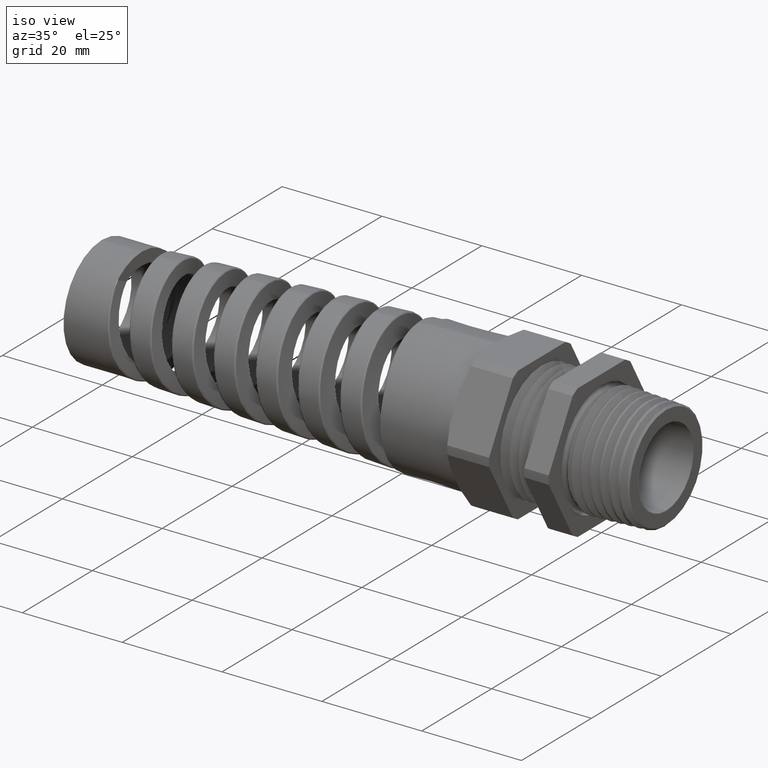
[diagram: clean part render]
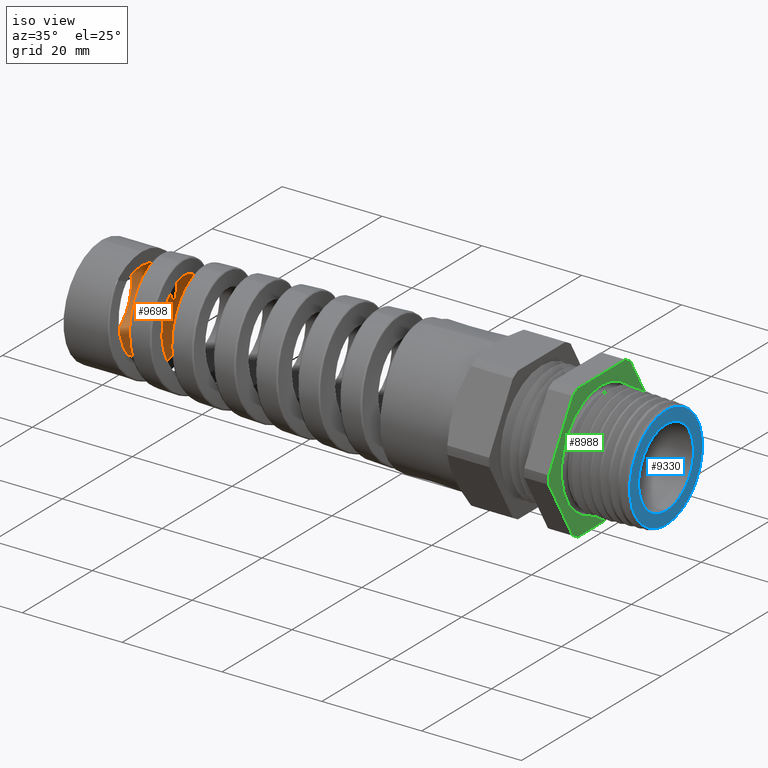
[diagram: same view with three faces highlighted in distinct colors, each labeled with its STEP entity id]
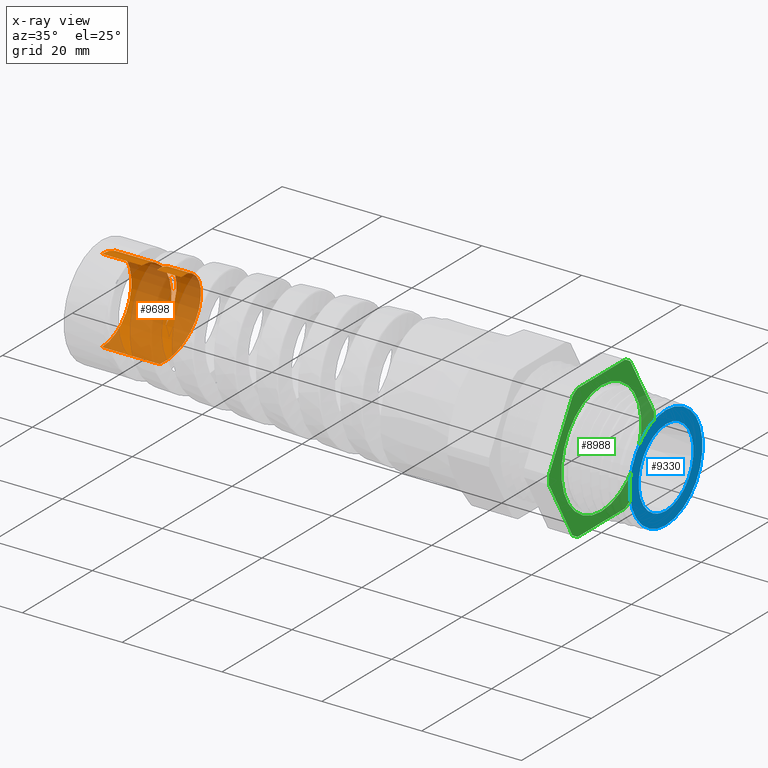
[diagram: x-ray of the same camera — body ghosted, the three highlighted faces saturated]
A machine part, iso view with three faces highlighted in distinct colors.
The next image is the same camera in x-ray (body ghosted, the three faces saturated) — at least one of them is partly hidden behind the body in this view.
Their STEP definitions:

[orange] entity #9698 — the highlighted cylindrical surface (partial cylindrical patch) has radius 8.4489 mm, axis along (1, 0, 0).
#2086 = CARTESIAN_POINT ( 'NONE',  ( -3.332419637064384600, 0.1172968321958106400, 0.3114596044755967300 ) ) ;
#2087 = CARTESIAN_POINT ( 'NONE',  ( -3.330619972169376100, 0.1069085794521860800, 0.3151760758886861800 ) ) ;
#2088 = CARTESIAN_POINT ( 'NONE',  ( -3.327057346710889700, 0.08603399710430580100, 0.3215020287888266700 ) ) ;
#2089 = CARTESIAN_POINT ( 'NONE',  ( -3.325285817009993900, 0.07550043780978385500, 0.3241350584902688000 ) ) ;
#2090 = CARTESIAN_POINT ( 'NONE',  ( -3.319975315656644300, 0.04362052677056483400, 0.3304743159976104600 ) ) ;
#2091 = CARTESIAN_POINT ( 'NONE',  ( -3.316435376215805400, 0.02195650486290792400, 0.3326356290387463300 ) ) ;
#2092 = CARTESIAN_POINT ( 'NONE',  ( -3.312849431311558800, -8.894512901246733600E-015, 0.3326356290387458300 ) ) ;
#2094 = B_SPLINE_CURVE_WITH_KNOTS ( 'NONE', 3,
 ( #2092, #2091, #2090, #2089, #2088, #2087, #2086, #2160, #2159, #2158, #2157, #2156, #2155, #2154, #2153, #2152, #2151, #2150, #2149, #2148, #2147, #2146, #2145, #2144, #2143, #2142, #2141, #2140, #2139, #2138, #2137, #2136, #2135, #2134, #2133, #2132, #2131, #2130, #2129, #2128, #2127, #2126, #2125, #2124 ),
 .UNSPECIFIED., .F., .F.,
 ( 4, 2, 2, 2, 2, 2, 2, 2, 2, 2, 2, 2, 2, 2, 2, 2, 2, 2, 2, 2, 2, 4 ),
 ( 0.3436682690029260700, 0.3453410504182771700, 0.3461774411259526700, 0.3470138318336282200, 0.3486866132489793200, 0.3503593946643304100, 0.3520321760796814600, 0.3528685667873570100, 0.3537049574950325600, 0.3553777389103836600, 0.3570505203257347000, 0.3578869110334102500, 0.3587233017410858000, 0.3603960831564369000, 0.3620688645717880000, 0.3637416459871391000, 0.3645780366948145900, 0.3654144274024901400, 0.3670872088178412400, 0.3687599902331923400, 0.3695963809408678900, 0.3704327716485434400 ),
 .UNSPECIFIED. ) ;
#2124 = CARTESIAN_POINT ( 'NONE',  ( -3.483565039913822500, 1.014301011947619900E-012, -0.3326356290387454400 ) ) ;
#2125 = CARTESIAN_POINT ( 'NONE',  ( -3.481787368350132800, 0.01089960243976619700, -0.3326356290387124100 ) ) ;
#2126 = CARTESIAN_POINT ( 'NONE',  ( -3.479990619161785300, 0.02191578194913980700, -0.3320926136535717300 ) ) ;
#2127 = CARTESIAN_POINT ( 'NONE',  ( -3.476425454781748100, 0.04365830670852512100, -0.3299390213312865000 ) ) ;
#2128 = CARTESIAN_POINT ( 'NONE',  ( -3.474653286242862700, 0.05440786973283673300, -0.3283347656878755100 ) ) ;
#2129 = CARTESIAN_POINT ( 'NONE',  ( -3.469341366220634300, 0.08629578726507872200, -0.3219773137582902500 ) ) ;
#2130 = CARTESIAN_POINT ( 'NONE',  ( -3.465805863022106700, 0.1070767329297673400, -0.3156940425236234900 ) ) ;
#2131 = CARTESIAN_POINT ( 'NONE',  ( -3.458621244356927100, 0.1476272929445691900, -0.2988885036224687700 ) ) ;
#2132 = CARTESIAN_POINT ( 'NONE',  ( -3.455076508318695200, 0.1668289887649651900, -0.2885898465524131000 ) ) ;
#2133 = CARTESIAN_POINT ( 'NONE',  ( -3.449771346605958300, 0.1938520334492141200, -0.2705277031349612700 ) ) ;
#2134 = CARTESIAN_POINT ( 'NONE',  ( -3.448002398847984200, 0.2025738202217209600, -0.2640628718960000800 ) ) ;
#2135 = CARTESIAN_POINT ( 'NONE',  ( -3.444445490478806400, 0.2194322198803097000, -0.2502296022288026400 ) ) ;
#2136 = CARTESIAN_POINT ( 'NONE',  ( -3.442648519813332100, 0.2276056406652872100, -0.2428196371982587200 ) ) ;
#2137 = CARTESIAN_POINT ( 'NONE',  ( -3.437304680492763200, 0.2507587713102731300, -0.2196439595799437300 ) ) ;
#2138 = CARTESIAN_POINT ( 'NONE',  ( -3.433783040290111300, 0.2644979293758868400, -0.2028763098247286000 ) ) ;
#2139 = CARTESIAN_POINT ( 'NONE',  ( -3.426682782364302200, 0.2886276930025962200, -0.1667693214120329600 ) ) ;
#2140 = CARTESIAN_POINT ( 'NONE',  ( -3.423071605734307400, 0.2990683630830463000, -0.1472299162739065800 ) ) ;
#2141 = CARTESIAN_POINT ( 'NONE',  ( -3.415962407389001600, 0.3156791909658361300, -0.1070755921503568100 ) ) ;
#2142 = CARTESIAN_POINT ( 'NONE',  ( -3.412442093894248800, 0.3219755742450180500, -0.08633726780221052900 ) ) ;
#2143 = CARTESIAN_POINT ( 'NONE',  ( -3.407103562814599600, 0.3283643175555855900, -0.05424315432610808000 ) ) ;
#2144 = CARTESIAN_POINT ( 'NONE',  ( -3.405306274526149300, 0.3299821854012857100, -0.04332852962705729300 ) ) ;
#2145 = CARTESIAN_POINT ( 'NONE',  ( -3.401745763295542300, 0.3321128510374162200, -0.02160227621455994600 ) ) ;
#2146 = CARTESIAN_POINT ( 'NONE',  ( -3.399975942972509400, 0.3326383819035133600, -0.01075179983920572000 ) ) ;
#2147 = CARTESIAN_POINT ( 'NONE',  ( -3.394670375380581400, 0.3326300908567569900, 0.02175809732717535300 ) ) ;
#2148 = CARTESIAN_POINT ( 'NONE',  ( -3.391138487564122600, 0.3305264560387649600, 0.04337638159647991300 ) ) ;
#2149 = CARTESIAN_POINT ( 'NONE',  ( -3.383948641168030800, 0.3219489938800366200, 0.08647597331965259400 ) ) ;
#2150 = CARTESIAN_POINT ( 'NONE',  ( -3.380405549248623100, 0.3156122105963011200, 0.1072615979921578400 ) ) ;
#2151 = CARTESIAN_POINT ( 'NONE',  ( -3.375094547811982700, 0.3031732073658950900, 0.1372948727568012200 ) ) ;
#2152 = CARTESIAN_POINT ( 'NONE',  ( -3.373323512750762400, 0.2985340101796914400, 0.1471155450342700500 ) ) ;
#2153 = CARTESIAN_POINT ( 'NONE',  ( -3.369761914453734500, 0.2882501464236512100, 0.1663652364872003100 ) ) ;
#2154 = CARTESIAN_POINT ( 'NONE',  ( -3.367964225090906100, 0.2825767353090208900, 0.1758291642440885400 ) ) ;
#2155 = CARTESIAN_POINT ( 'NONE',  ( -3.362625654925846000, 0.2643821574943625600, 0.2030387032743671300 ) ) ;
#2156 = CARTESIAN_POINT ( 'NONE',  ( -3.359108080068348400, 0.2506238158106998100, 0.2197865513007754000 ) ) ;
#2157 = CARTESIAN_POINT ( 'NONE',  ( -3.352012401241920800, 0.2199078594471936500, 0.2505173817074522500 ) ) ;
#2158 = CARTESIAN_POINT ( 'NONE',  ( -3.348405517729536200, 0.2027806688916460300, 0.2645714718353905900 ) ) ;
#2159 = CARTESIAN_POINT ( 'NONE',  ( -3.341296669024683000, 0.1666604879460637500, 0.2886907430848246200 ) ) ;
#2160 = CARTESIAN_POINT ( 'NONE',  ( -3.337768482185635500, 0.1475499223349068500, 0.2989183225465219500 ) ) ;
#2851 = CARTESIAN_POINT ( 'NONE',  ( -3.624800000000000000, 0.2686459921528348600, -0.1961524728526759000 ) ) ;
#3379 = CARTESIAN_POINT ( 'NONE',  ( -3.510878311447871000, 0.03055612501603862200, 0.3315849165378102500 ) ) ;
#3380 = CARTESIAN_POINT ( 'NONE',  ( -3.515862798531213000, 0.06097381763225370700, 0.3273597825248713000 ) ) ;
#3381 = CARTESIAN_POINT ( 'NONE',  ( -3.518329943372475300, 0.07588301324879503900, 0.3242204771706611600 ) ) ;
#3382 = CARTESIAN_POINT ( 'NONE',  ( -3.523261832488077300, 0.1051139865573061200, 0.3159560085621390700 ) ) ;
#3383 = CARTESIAN_POINT ( 'NONE',  ( -3.525726436519823100, 0.1194357633140339700, 0.3108307615391873200 ) ) ;
#3384 = CARTESIAN_POINT ( 'NONE',  ( -3.530696132369825200, 0.1474717725117943300, 0.2985510679760943800 ) ) ;
#3385 = CARTESIAN_POINT ( 'NONE',  ( -3.533200741779432400, 0.1611760380502160500, 0.2913774133962536200 ) ) ;
#3386 = CARTESIAN_POINT ( 'NONE',  ( -3.538145754456585700, 0.1871330887446955300, 0.2754264318759656600 ) ) ;
#3387 = CARTESIAN_POINT ( 'NONE',  ( -3.540605489758901700, 0.1994981298100592900, 0.2666052924812656300 ) ) ;
#3388 = CARTESIAN_POINT ( 'NONE',  ( -3.545545561637612100, 0.2230000938494625100, 0.2472829228229546900 ) ) ;
#3389 = CARTESIAN_POINT ( 'NONE',  ( -3.548041395585944000, 0.2342013191500274300, 0.2367100858774413000 ) ) ;
#3390 = CARTESIAN_POINT ( 'NONE',  ( -3.555514953843075300, 0.2653986084089941500, 0.2028592717315088900 ) ) ;
#3391 = CARTESIAN_POINT ( 'NONE',  ( -3.560398040512245700, 0.2827278827962916300, 0.1779024037735232900 ) ) ;
#3392 = CARTESIAN_POINT ( 'NONE',  ( -3.567857102397325800, 0.3035251125336226300, 0.1369431728333724600 ) ) ;
#3393 = CARTESIAN_POINT ( 'NONE',  ( -3.570361546834223400, 0.3095495936322056300, 0.1227086170024681100 ) ) ;
#3394 = CARTESIAN_POINT ( 'NONE',  ( -3.575305612240963400, 0.3194664995187270800, 0.09391225313968944200 ) ) ;
#3395 = CARTESIAN_POINT ( 'NONE',  ( -3.577764822917159000, 0.3234162217421433500, 0.07924619645759785300 ) ) ;
#3396 = CARTESIAN_POINT ( 'NONE',  ( -3.582704780823447800, 0.3293006857953549900, 0.04938694638938766200 ) ) ;
#3397 = CARTESIAN_POINT ( 'NONE',  ( -3.585202544327633900, 0.3312395128146035100, 0.03408822482171274700 ) ) ;
#3398 = CARTESIAN_POINT ( 'NONE',  ( -3.590182844149499600, 0.3329708696028344000, 0.003467263630560508700 ) ) ;
#3399 = CARTESIAN_POINT ( 'NONE',  ( -3.592649507466562300, 0.3327745254082268300, -0.01175736722559658800 ) ) ;
#3400 = CARTESIAN_POINT ( 'NONE',  ( -3.597580079502187300, 0.3303185767821627000, -0.04203282380895512200 ) ) ;
#3406 = CARTESIAN_POINT ( 'NONE',  ( -3.600044259276092600, 0.3280589358048664500, -0.05708360207319071500 ) ) ;
#3407 = CARTESIAN_POINT ( 'NONE',  ( -3.605018382305361400, 0.3214224666810022200, -0.08699885573829009600 ) ) ;
#3408 = CARTESIAN_POINT ( 'NONE',  ( -3.607519652665494900, 0.3170383022276247500, -0.1018044314955911800 ) ) ;
#3409 = CARTESIAN_POINT ( 'NONE',  ( -3.614923345370609100, 0.3011323164038692800, -0.1445325302667013800 ) ) ;
#3410 = CARTESIAN_POINT ( 'NONE',  ( -3.619798076906621400, 0.2868155853971033900, -0.1712678087282256700 ) ) ;
#3411 = CARTESIAN_POINT ( 'NONE',  ( -3.624800000000000000, 0.2686459921528348600, -0.1961524728526759000 ) ) ;
#3413 = B_SPLINE_CURVE_WITH_KNOTS ( 'NONE', 3,
 ( #3411, #3410, #3409, #3408, #3407, #3406, #3400, #3399, #3398, #3397, #3396, #3395, #3394, #3393, #3392, #3391, #3390, #3389, #3388, #3387, #3386, #3385, #3384, #3383, #3382, #3381, #3380, #3379, #3449, #3448 ),
 .UNSPECIFIED., .F., .F.,
 ( 4, 2, 2, 2, 2, 2, 2, 2, 2, 2, 2, 2, 2, 2, 4 ),
 ( 1.427883970672907300E-016, 0.002337888064892977500, 0.003506832097339390500, 0.004675776129785803200, 0.005844720162232215800, 0.007013664194678627600, 0.008182608227125038500, 0.009351552259571452000, 0.01168944032446427500, 0.01285838435691069100, 0.01402732838935710400, 0.01519627242180352300, 0.01636521645424994200, 0.01753416048669636000, 0.01870310451914277600 ),
 .UNSPECIFIED. ) ;
#3415 = CIRCLE ( 'NONE', #3481, 0.3326356290387437700 ) ;
#3448 = CARTESIAN_POINT ( 'NONE',  ( -3.505916521317922200, 5.897067389167196200E-013, 0.3326356290387457700 ) ) ;
#3449 = CARTESIAN_POINT ( 'NONE',  ( -3.508388289969136800, 0.01520852404908703100, 0.3326356290387173500 ) ) ;
#3451 = CYLINDRICAL_SURFACE ( 'NONE', #3517, 0.3326356290387456100 ) ;
#3452 = FACE_OUTER_BOUND ( 'NONE', #9699, .T. ) ;
#3478 = DIRECTION ( 'NONE',  ( 0.0000000000000000000, 0.0000000000000000000, 1.000000000000000000 ) ) ;
#3479 = DIRECTION ( 'NONE',  ( -1.000000000000000000, 0.0000000000000000000, 0.0000000000000000000 ) ) ;
#3480 = CARTESIAN_POINT ( 'NONE',  ( -3.624800000000000000, 0.0000000000000000000, 0.0000000000000000000 ) ) ;
#3481 = AXIS2_PLACEMENT_3D ( 'NONE', #3480, #3479, #3478 ) ;
#3489 = DIRECTION ( 'NONE',  ( 0.0000000000000000000, 0.0000000000000000000, 1.000000000000000000 ) ) ;
#3490 = DIRECTION ( 'NONE',  ( -1.000000000000000000, 0.0000000000000000000, 0.0000000000000000000 ) ) ;
#3491 = CARTESIAN_POINT ( 'NONE',  ( -3.939999999999999900, 0.0000000000000000000, 0.0000000000000000000 ) ) ;
#3492 = AXIS2_PLACEMENT_3D ( 'NONE', #3491, #3490, #3489 ) ;
#3513 = DIRECTION ( 'NONE',  ( 0.0000000000000000000, 0.0000000000000000000, -1.000000000000000000 ) ) ;
#3514 = DIRECTION ( 'NONE',  ( 1.000000000000000000, 0.0000000000000000000, 0.0000000000000000000 ) ) ;
#3515 = CARTESIAN_POINT ( 'NONE',  ( 0.4924815508901369000, 0.0000000000000000000, 0.0000000000000000000 ) ) ;
#3516 = CIRCLE ( 'NONE', #3492, 0.3326356290387437700 ) ;
#3517 = AXIS2_PLACEMENT_3D ( 'NONE', #3515, #3514, #3513 ) ;
#3525 = DIRECTION ( 'NONE',  ( 1.000000000000000000, 0.0000000000000000000, 0.0000000000000000000 ) ) ;
#3526 = VECTOR ( 'NONE', #3525, 39.37007874015748100 ) ;
#3527 = CARTESIAN_POINT ( 'NONE',  ( 0.4924815508901369000, 4.073611583846661800E-017, 0.3326356290387456100 ) ) ;
#3528 = LINE ( 'NONE', #3527, #3526 ) ;
#3601 = CARTESIAN_POINT ( 'NONE',  ( -3.483565039913822500, 1.014301011947619900E-012, -0.3326356290387454400 ) ) ;
#3635 = DIRECTION ( 'NONE',  ( 1.000000000000000000, 0.0000000000000000000, 0.0000000000000000000 ) ) ;
#3636 = VECTOR ( 'NONE', #3635, 39.37007874015748100 ) ;
#3637 = CARTESIAN_POINT ( 'NONE',  ( 0.4924815508901369000, 0.0000000000000000000, -0.3326356290387456100 ) ) ;
#3638 = LINE ( 'NONE', #3637, #3636 ) ;
#5774 = CARTESIAN_POINT ( 'NONE',  ( -3.312849431311558800, -8.894512901246733600E-015, 0.3326356290387458300 ) ) ;
#5775 = DIRECTION ( 'NONE',  ( 1.000000000000000000, 0.0000000000000000000, 0.0000000000000000000 ) ) ;
#5776 = VECTOR ( 'NONE', #5775, 39.37007874015748100 ) ;
#5777 = CARTESIAN_POINT ( 'NONE',  ( 0.4924815508901369000, 4.073611583846661800E-017, 0.3326356290387456100 ) ) ;
#5778 = LINE ( 'NONE', #5777, #5776 ) ;
#5944 = CARTESIAN_POINT ( 'NONE',  ( -3.624800000000000000, 4.073611583846651300E-017, 0.3326356290387437700 ) ) ;
#5945 = CARTESIAN_POINT ( 'NONE',  ( -3.939999999999999900, 4.073611583846651300E-017, 0.3326356290387437700 ) ) ;
#5946 = CARTESIAN_POINT ( 'NONE',  ( -3.939999999999999900, 0.0000000000000000000, -0.3326356290387437700 ) ) ;
#5975 = CARTESIAN_POINT ( 'NONE',  ( -3.505916521317922200, 5.897067389167196200E-013, 0.3326356290387457700 ) ) ;
#9630 = EDGE_CURVE ( 'NONE', #9851, #9770, #2094, .T. ) ;
#9659 = VERTEX_POINT ( 'NONE', #2851 ) ;
#9661 = EDGE_CURVE ( 'NONE', #9659, #9777, #3413, .T. ) ;
#9684 = EDGE_CURVE ( 'NONE', #9794, #9659, #3415, .T. ) ;
#9698 = ADVANCED_FACE ( 'NONE', ( #3452 ), #3451, .F. ) ;
#9699 = EDGE_LOOP ( 'NONE', ( #9700, #9701, #9703, #9704, #9705, #9706, #9707 ) ) ;
#9700 = ORIENTED_EDGE ( 'NONE', *, *, #9764, .F. ) ;
#9701 = ORIENTED_EDGE ( 'NONE', *, *, #9702, .T. ) ;
#9702 = EDGE_CURVE ( 'NONE', #9792, #9791, #3516, .T. ) ;
#9703 = ORIENTED_EDGE ( 'NONE', *, *, #9772, .T. ) ;
#9704 = ORIENTED_EDGE ( 'NONE', *, *, #9630, .F. ) ;
#9705 = ORIENTED_EDGE ( 'NONE', *, *, #9850, .F. ) ;
#9706 = ORIENTED_EDGE ( 'NONE', *, *, #9661, .F. ) ;
#9707 = ORIENTED_EDGE ( 'NONE', *, *, #9684, .F. ) ;
#9764 = EDGE_CURVE ( 'NONE', #9792, #9794, #3528, .T. ) ;
#9770 = VERTEX_POINT ( 'NONE', #3601 ) ;
#9772 = EDGE_CURVE ( 'NONE', #9791, #9770, #3638, .T. ) ;
#9777 = VERTEX_POINT ( 'NONE', #5975 ) ;
#9791 = VERTEX_POINT ( 'NONE', #5946 ) ;
#9792 = VERTEX_POINT ( 'NONE', #5945 ) ;
#9794 = VERTEX_POINT ( 'NONE', #5944 ) ;
#9850 = EDGE_CURVE ( 'NONE', #9777, #9851, #5778, .T. ) ;
#9851 = VERTEX_POINT ( 'NONE', #5774 ) ;

[blue] entity #9330 — the highlighted planar face has unit normal (-1, 0, 0).
#269 = VERTEX_POINT ( 'NONE', #10260 ) ;
#274 = VERTEX_POINT ( 'NONE', #10248 ) ;
#281 = EDGE_CURVE ( 'NONE', #274, #269, #10242, .T. ) ;
#955 = CARTESIAN_POINT ( 'NONE',  ( 0.5100000000000000100, 0.0000000000000000000, 0.0000000000000000000 ) ) ;
#956 = AXIS2_PLACEMENT_3D ( 'NONE', #955, #1017, #1016 ) ;
#957 = CIRCLE ( 'NONE', #956, 0.4102329191166588200 ) ;
#959 = DIRECTION ( 'NONE',  ( 0.0000000000000000000, 0.0000000000000000000, 1.000000000000000000 ) ) ;
#960 = DIRECTION ( 'NONE',  ( -1.000000000000000000, 0.0000000000000000000, 0.0000000000000000000 ) ) ;
#961 = CARTESIAN_POINT ( 'NONE',  ( 0.5100000000000000100, 0.4227329191166588300, 0.0000000000000000000 ) ) ;
#962 = AXIS2_PLACEMENT_3D ( 'NONE', #961, #960, #959 ) ;
#963 = PLANE ( 'NONE',  #962 ) ;
#964 = FACE_BOUND ( 'NONE', #9334, .T. ) ;
#965 = FACE_OUTER_BOUND ( 'NONE', #9353, .T. ) ;
#966 = DIRECTION ( 'NONE',  ( 0.0000000000000000000, 0.0000000000000000000, 1.000000000000000000 ) ) ;
#967 = DIRECTION ( 'NONE',  ( -1.000000000000000000, 0.0000000000000000000, 0.0000000000000000000 ) ) ;
#968 = CARTESIAN_POINT ( 'NONE',  ( 0.5100000000000000100, 0.0000000000000000000, 0.0000000000000000000 ) ) ;
#969 = AXIS2_PLACEMENT_3D ( 'NONE', #968, #967, #966 ) ;
#970 = CIRCLE ( 'NONE', #969, 0.3092514547431566300 ) ;
#1016 = DIRECTION ( 'NONE',  ( 0.0000000000000000000, 0.0000000000000000000, 1.000000000000000000 ) ) ;
#1017 = DIRECTION ( 'NONE',  ( 1.000000000000000000, 0.0000000000000000000, 0.0000000000000000000 ) ) ;
#8258 = VERTEX_POINT ( 'NONE', #11302 ) ;
#8259 = VERTEX_POINT ( 'NONE', #11301 ) ;
#8263 = EDGE_CURVE ( 'NONE', #8259, #8258, #11295, .T. ) ;
#9329 = EDGE_CURVE ( 'NONE', #8258, #8259, #970, .T. ) ;
#9330 = ADVANCED_FACE ( 'NONE', ( #965, #964 ), #963, .F. ) ;
#9331 = ORIENTED_EDGE ( 'NONE', *, *, #9332, .T. ) ;
#9332 = EDGE_CURVE ( 'NONE', #269, #274, #957, .T. ) ;
#9333 = ORIENTED_EDGE ( 'NONE', *, *, #281, .T. ) ;
#9334 = EDGE_LOOP ( 'NONE', ( #9335, #9336 ) ) ;
#9335 = ORIENTED_EDGE ( 'NONE', *, *, #8263, .T. ) ;
#9336 = ORIENTED_EDGE ( 'NONE', *, *, #9329, .T. ) ;
#9353 = EDGE_LOOP ( 'NONE', ( #9331, #9333 ) ) ;
#10241 = CARTESIAN_POINT ( 'NONE',  ( 0.5100000000000000100, 0.0000000000000000000, 0.0000000000000000000 ) ) ;
#10242 = CIRCLE ( 'NONE', #10300, 0.4102329191166588200 ) ;
#10248 = CARTESIAN_POINT ( 'NONE',  ( 0.5100000000000000100, 5.103939133694166500E-017, -0.4102329191166588200 ) ) ;
#10260 = CARTESIAN_POINT ( 'NONE',  ( 0.5100000000000000100, 0.0000000000000000000, 0.4102329191166588200 ) ) ;
#10298 = DIRECTION ( 'NONE',  ( 0.0000000000000000000, 0.0000000000000000000, 1.000000000000000000 ) ) ;
#10299 = DIRECTION ( 'NONE',  ( 1.000000000000000000, 0.0000000000000000000, 0.0000000000000000000 ) ) ;
#10300 = AXIS2_PLACEMENT_3D ( 'NONE', #10241, #10299, #10298 ) ;
#11291 = DIRECTION ( 'NONE',  ( 0.0000000000000000000, 0.0000000000000000000, 1.000000000000000000 ) ) ;
#11292 = DIRECTION ( 'NONE',  ( -1.000000000000000000, 0.0000000000000000000, 0.0000000000000000000 ) ) ;
#11293 = CARTESIAN_POINT ( 'NONE',  ( 0.5100000000000000100, 0.0000000000000000000, 0.0000000000000000000 ) ) ;
#11294 = AXIS2_PLACEMENT_3D ( 'NONE', #11293, #11292, #11291 ) ;
#11295 = CIRCLE ( 'NONE', #11294, 0.3092514547431566300 ) ;
#11301 = CARTESIAN_POINT ( 'NONE',  ( 0.5100000000000000100, 0.0000000000000000000, -0.3092514547431566300 ) ) ;
#11302 = CARTESIAN_POINT ( 'NONE',  ( 0.5100000000000000100, 3.787238041828693400E-017, 0.3092514547431566300 ) ) ;

[green] entity #8988 — the highlighted planar face has unit normal (-1, 0, 0).
#8471 = VERTEX_POINT ( 'NONE', #11513 ) ;
#8472 = ORIENTED_EDGE ( 'NONE', *, *, #8475, .F. ) ;
#8474 = EDGE_CURVE ( 'NONE', #8491, #8488, #11512, .T. ) ;
#8475 = EDGE_CURVE ( 'NONE', #8471, #8488, #11508, .T. ) ;
#8488 = VERTEX_POINT ( 'NONE', #11547 ) ;
#8489 = ORIENTED_EDGE ( 'NONE', *, *, #8474, .T. ) ;
#8491 = VERTEX_POINT ( 'NONE', #11546 ) ;
#8840 = EDGE_CURVE ( 'NONE', #8867, #8841, #12693, .T. ) ;
#8841 = VERTEX_POINT ( 'NONE', #12689 ) ;
#8867 = VERTEX_POINT ( 'NONE', #12699 ) ;
#8959 = ORIENTED_EDGE ( 'NONE', *, *, #8960, .F. ) ;
#8960 = EDGE_CURVE ( 'NONE', #8961, #8987, #12897, .T. ) ;
#8961 = VERTEX_POINT ( 'NONE', #12892 ) ;
#8962 = ORIENTED_EDGE ( 'NONE', *, *, #8963, .T. ) ;
#8963 = EDGE_CURVE ( 'NONE', #8961, #8964, #12891, .T. ) ;
#8964 = VERTEX_POINT ( 'NONE', #12946 ) ;
#8965 = ORIENTED_EDGE ( 'NONE', *, *, #8966, .F. ) ;
#8966 = EDGE_CURVE ( 'NONE', #8992, #8964, #12944, .T. ) ;
#8967 = EDGE_LOOP ( 'NONE', ( #8968, #8970 ) ) ;
#8968 = ORIENTED_EDGE ( 'NONE', *, *, #8969, .F. ) ;
#8969 = EDGE_CURVE ( 'NONE', #8841, #8867, #12939, .T. ) ;
#8970 = ORIENTED_EDGE ( 'NONE', *, *, #8840, .F. ) ;
#8973 = ORIENTED_EDGE ( 'NONE', *, *, #8974, .T. ) ;
#8974 = EDGE_CURVE ( 'NONE', #8471, #8975, #12933, .T. ) ;
#8975 = VERTEX_POINT ( 'NONE', #12925 ) ;
#8976 = ORIENTED_EDGE ( 'NONE', *, *, #8977, .F. ) ;
#8977 = EDGE_CURVE ( 'NONE', #8978, #8975, #12924, .T. ) ;
#8978 = VERTEX_POINT ( 'NONE', #12919 ) ;
#8979 = ORIENTED_EDGE ( 'NONE', *, *, #8980, .T. ) ;
#8980 = EDGE_CURVE ( 'NONE', #8978, #8981, #12918, .T. ) ;
#8981 = VERTEX_POINT ( 'NONE', #12979 ) ;
#8982 = ORIENTED_EDGE ( 'NONE', *, *, #8983, .F. ) ;
#8983 = EDGE_CURVE ( 'NONE', #8984, #8981, #12978, .T. ) ;
#8984 = VERTEX_POINT ( 'NONE', #12973 ) ;
#8985 = ORIENTED_EDGE ( 'NONE', *, *, #8986, .T. ) ;
#8986 = EDGE_CURVE ( 'NONE', #8984, #8987, #12972, .T. ) ;
#8987 = VERTEX_POINT ( 'NONE', #12968 ) ;
#8988 = ADVANCED_FACE ( 'NONE', ( #12967, #12966 ), #12965, .F. ) ;
#8989 = EDGE_LOOP ( 'NONE', ( #8990, #8994, #8489, #8472, #8973, #8976, #8979, #8982, #8985, #8959, #8962, #8965 ) ) ;
#8990 = ORIENTED_EDGE ( 'NONE', *, *, #8991, .T. ) ;
#8991 = EDGE_CURVE ( 'NONE', #8992, #8993, #12960, .T. ) ;
#8992 = VERTEX_POINT ( 'NONE', #12956 ) ;
#8993 = VERTEX_POINT ( 'NONE', #12955 ) ;
#8994 = ORIENTED_EDGE ( 'NONE', *, *, #8995, .F. ) ;
#8995 = EDGE_CURVE ( 'NONE', #8491, #8993, #12954, .T. ) ;
#11504 = DIRECTION ( 'NONE',  ( 0.0000000000000000000, 0.0000000000000000000, 1.000000000000000000 ) ) ;
#11505 = DIRECTION ( 'NONE',  ( -1.000000000000000000, 0.0000000000000000000, 0.0000000000000000000 ) ) ;
#11506 = CARTESIAN_POINT ( 'NONE',  ( 0.0000000000000000000, 0.0000000000000000000, 0.0000000000000000000 ) ) ;
#11507 = AXIS2_PLACEMENT_3D ( 'NONE', #11506, #11505, #11504 ) ;
#11508 = CIRCLE ( 'NONE', #11507, 0.5936000000000001300 ) ;
#11509 = DIRECTION ( 'NONE',  ( 0.0000000000000000000, 1.000000000000000000, 0.0000000000000000000 ) ) ;
#11510 = VECTOR ( 'NONE', #11509, 39.37007874015748100 ) ;
#11511 = CARTESIAN_POINT ( 'NONE',  ( 0.0000000000000000000, -0.2673218285138724300, -0.5299999999999999200 ) ) ;
#11512 = LINE ( 'NONE', #11511, #11510 ) ;
#11513 = CARTESIAN_POINT ( 'NONE',  ( 0.0000000000000000000, 0.3253325497488160900, -0.4965074944791208500 ) ) ;
#11546 = CARTESIAN_POINT ( 'NONE',  ( 0.0000000000000000000, -0.2673218285138723200, -0.5299999999999999200 ) ) ;
#11547 = CARTESIAN_POINT ( 'NONE',  ( 0.0000000000000000000, 0.2673218285138724300, -0.5299999999999999200 ) ) ;
#12689 = CARTESIAN_POINT ( 'NONE',  ( 0.0000000000000000000, 0.0000000000000000000, -0.4499999999999998400 ) ) ;
#12690 = DIRECTION ( 'NONE',  ( 0.0000000000000000000, 0.0000000000000000000, 1.000000000000000000 ) ) ;
#12691 = DIRECTION ( 'NONE',  ( 1.000000000000000000, 0.0000000000000000000, 0.0000000000000000000 ) ) ;
#12692 = AXIS2_PLACEMENT_3D ( 'NONE', #12697, #12691, #12690 ) ;
#12693 = CIRCLE ( 'NONE', #12692, 0.4499999999999998400 ) ;
#12697 = CARTESIAN_POINT ( 'NONE',  ( 0.0000000000000000000, 0.0000000000000000000, 0.0000000000000000000 ) ) ;
#12699 = CARTESIAN_POINT ( 'NONE',  ( 0.0000000000000000000, 5.510910596163088300E-017, 0.4499999999999998400 ) ) ;
#12889 = VECTOR ( 'NONE', #12947, 39.37007874015748100 ) ;
#12890 = CARTESIAN_POINT ( 'NONE',  ( 0.0000000000000000000, -0.3253325497488163700, 0.4965074944791205700 ) ) ;
#12891 = LINE ( 'NONE', #12890, #12889 ) ;
#12892 = CARTESIAN_POINT ( 'NONE',  ( 0.0000000000000000000, -0.3253325497488163700, 0.4965074944791205700 ) ) ;
#12893 = DIRECTION ( 'NONE',  ( 0.0000000000000000000, 0.0000000000000000000, 1.000000000000000000 ) ) ;
#12894 = DIRECTION ( 'NONE',  ( -1.000000000000000000, 0.0000000000000000000, 0.0000000000000000000 ) ) ;
#12895 = CARTESIAN_POINT ( 'NONE',  ( 0.0000000000000000000, 0.0000000000000000000, 0.0000000000000000000 ) ) ;
#12896 = AXIS2_PLACEMENT_3D ( 'NONE', #12895, #12894, #12893 ) ;
#12897 = CIRCLE ( 'NONE', #12896, 0.5936000000000001300 ) ;
#12918 = LINE ( 'NONE', #12982, #12981 ) ;
#12919 = CARTESIAN_POINT ( 'NONE',  ( 0.0000000000000000000, 0.5926543782626885200, 0.03349250552087933200 ) ) ;
#12920 = DIRECTION ( 'NONE',  ( 0.0000000000000000000, 0.0000000000000000000, 1.000000000000000000 ) ) ;
#12921 = DIRECTION ( 'NONE',  ( -1.000000000000000000, 0.0000000000000000000, 0.0000000000000000000 ) ) ;
#12922 = CARTESIAN_POINT ( 'NONE',  ( 0.0000000000000000000, 0.0000000000000000000, 0.0000000000000000000 ) ) ;
#12923 = AXIS2_PLACEMENT_3D ( 'NONE', #12922, #12921, #12920 ) ;
#12924 = CIRCLE ( 'NONE', #12923, 0.5936000000000001300 ) ;
#12925 = CARTESIAN_POINT ( 'NONE',  ( 0.0000000000000000000, 0.5926543782626886300, -0.03349250552087888000 ) ) ;
#12926 = DIRECTION ( 'NONE',  ( 0.0000000000000000000, 0.4999999999999998300, 0.8660254037844388200 ) ) ;
#12927 = VECTOR ( 'NONE', #12926, 39.37007874015748100 ) ;
#12928 = CARTESIAN_POINT ( 'NONE',  ( 0.0000000000000000000, 0.3253325497488160900, -0.4965074944791208500 ) ) ;
#12933 = LINE ( 'NONE', #12928, #12927 ) ;
#12936 = DIRECTION ( 'NONE',  ( 0.0000000000000000000, 0.0000000000000000000, 1.000000000000000000 ) ) ;
#12937 = DIRECTION ( 'NONE',  ( 1.000000000000000000, 0.0000000000000000000, 0.0000000000000000000 ) ) ;
#12938 = AXIS2_PLACEMENT_3D ( 'NONE', #12945, #12937, #12936 ) ;
#12939 = CIRCLE ( 'NONE', #12938, 0.4499999999999998400 ) ;
#12940 = DIRECTION ( 'NONE',  ( 0.0000000000000000000, 0.0000000000000000000, 1.000000000000000000 ) ) ;
#12941 = DIRECTION ( 'NONE',  ( -1.000000000000000000, 0.0000000000000000000, 0.0000000000000000000 ) ) ;
#12942 = CARTESIAN_POINT ( 'NONE',  ( 0.0000000000000000000, 0.0000000000000000000, 0.0000000000000000000 ) ) ;
#12943 = AXIS2_PLACEMENT_3D ( 'NONE', #12942, #12941, #12940 ) ;
#12944 = CIRCLE ( 'NONE', #12943, 0.5936000000000001300 ) ;
#12945 = CARTESIAN_POINT ( 'NONE',  ( 0.0000000000000000000, 0.0000000000000000000, 0.0000000000000000000 ) ) ;
#12946 = CARTESIAN_POINT ( 'NONE',  ( 0.0000000000000000000, -0.5926543782626886300, 0.03349250552087959500 ) ) ;
#12947 = DIRECTION ( 'NONE',  ( 0.0000000000000000000, -0.5000000000000003300, -0.8660254037844383700 ) ) ;
#12950 = DIRECTION ( 'NONE',  ( 0.0000000000000000000, 0.0000000000000000000, 1.000000000000000000 ) ) ;
#12951 = DIRECTION ( 'NONE',  ( -1.000000000000000000, 0.0000000000000000000, 0.0000000000000000000 ) ) ;
#12952 = CARTESIAN_POINT ( 'NONE',  ( 0.0000000000000000000, 0.0000000000000000000, 0.0000000000000000000 ) ) ;
#12953 = AXIS2_PLACEMENT_3D ( 'NONE', #12952, #12951, #12950 ) ;
#12954 = CIRCLE ( 'NONE', #12953, 0.5936000000000001300 ) ;
#12955 = CARTESIAN_POINT ( 'NONE',  ( 0.0000000000000000000, -0.3253325497488163700, -0.4965074944791205700 ) ) ;
#12956 = CARTESIAN_POINT ( 'NONE',  ( 0.0000000000000000000, -0.5926543782626886300, -0.03349250552087963000 ) ) ;
#12957 = DIRECTION ( 'NONE',  ( 0.0000000000000000000, 0.5000000000000003300, -0.8660254037844383700 ) ) ;
#12958 = VECTOR ( 'NONE', #12957, 39.37007874015748100 ) ;
#12959 = CARTESIAN_POINT ( 'NONE',  ( 0.0000000000000000000, -0.5926543782626886300, -0.03349250552087959500 ) ) ;
#12960 = LINE ( 'NONE', #12959, #12958 ) ;
#12961 = DIRECTION ( 'NONE',  ( 0.0000000000000000000, 0.0000000000000000000, 1.000000000000000000 ) ) ;
#12962 = DIRECTION ( 'NONE',  ( -1.000000000000000000, 0.0000000000000000000, 0.0000000000000000000 ) ) ;
#12963 = CARTESIAN_POINT ( 'NONE',  ( 0.0000000000000000000, 0.5936000000000001300, 0.0000000000000000000 ) ) ;
#12964 = AXIS2_PLACEMENT_3D ( 'NONE', #12963, #12962, #12961 ) ;
#12965 = PLANE ( 'NONE',  #12964 ) ;
#12966 = FACE_BOUND ( 'NONE', #8967, .T. ) ;
#12967 = FACE_OUTER_BOUND ( 'NONE', #8989, .T. ) ;
#12968 = CARTESIAN_POINT ( 'NONE',  ( 0.0000000000000000000, -0.2673218285138724300, 0.5299999999999999200 ) ) ;
#12969 = DIRECTION ( 'NONE',  ( 0.0000000000000000000, -1.000000000000000000, 0.0000000000000000000 ) ) ;
#12970 = VECTOR ( 'NONE', #12969, 39.37007874015748100 ) ;
#12971 = CARTESIAN_POINT ( 'NONE',  ( 0.0000000000000000000, 0.2673218285138724300, 0.5299999999999999200 ) ) ;
#12972 = LINE ( 'NONE', #12971, #12970 ) ;
#12973 = CARTESIAN_POINT ( 'NONE',  ( 0.0000000000000000000, 0.2673218285138722600, 0.5299999999999999200 ) ) ;
#12974 = DIRECTION ( 'NONE',  ( 0.0000000000000000000, 0.0000000000000000000, 1.000000000000000000 ) ) ;
#12975 = DIRECTION ( 'NONE',  ( -1.000000000000000000, 0.0000000000000000000, 0.0000000000000000000 ) ) ;
#12976 = CARTESIAN_POINT ( 'NONE',  ( 0.0000000000000000000, 0.0000000000000000000, 0.0000000000000000000 ) ) ;
#12977 = AXIS2_PLACEMENT_3D ( 'NONE', #12976, #12975, #12974 ) ;
#12978 = CIRCLE ( 'NONE', #12977, 0.5936000000000001300 ) ;
#12979 = CARTESIAN_POINT ( 'NONE',  ( 0.0000000000000000000, 0.3253325497488162000, 0.4965074944791207400 ) ) ;
#12980 = DIRECTION ( 'NONE',  ( 0.0000000000000000000, -0.5000000000000001100, 0.8660254037844386000 ) ) ;
#12981 = VECTOR ( 'NONE', #12980, 39.37007874015748100 ) ;
#12982 = CARTESIAN_POINT ( 'NONE',  ( 0.0000000000000000000, 0.5926543782626886300, 0.03349250552087932500 ) ) ;